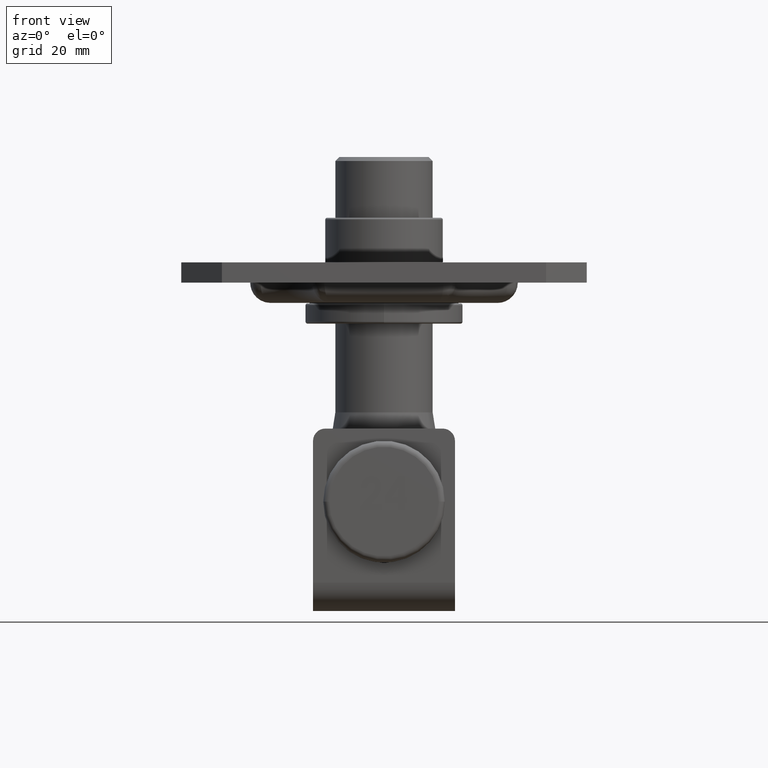
[diagram: clean part render]
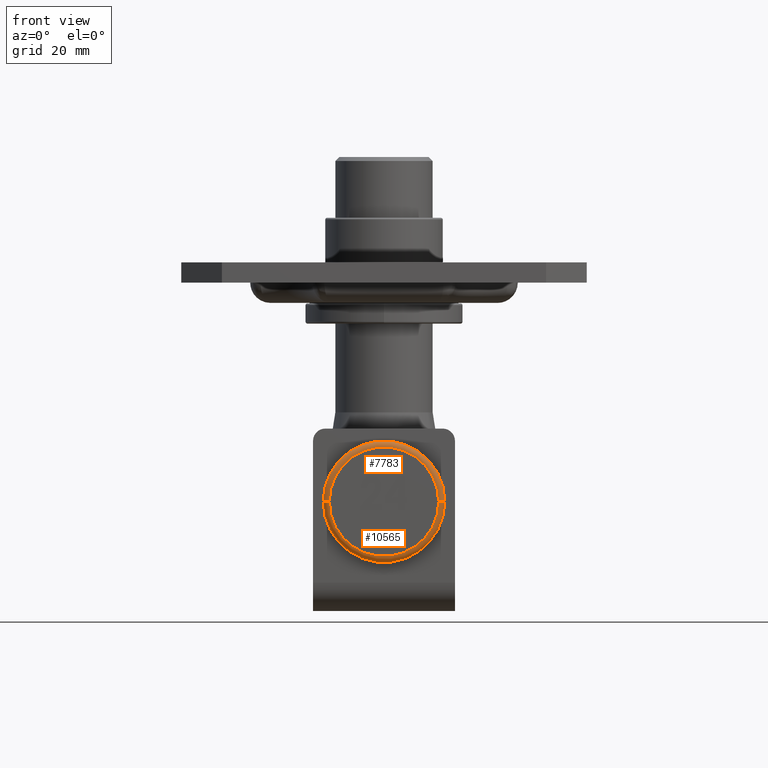
[diagram: same view with one multi-face feature highlighted, each face labeled with its STEP entity id]
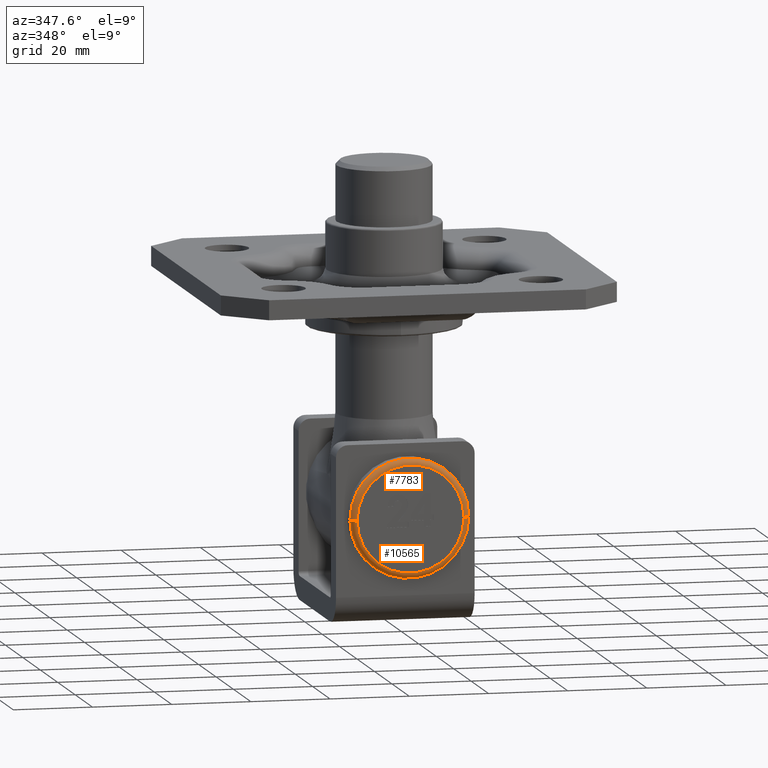
[diagram: same view with one multi-face feature highlighted, each face labeled with its STEP entity id]
A machine part, front view. The highlighted faces form ONE feature: a constant-radius fillet chain: 2 tangent blend faces with common blend radius 1.5 mm. The faces share edges in the B-rep.
A second angle (auxiliary view) of the same feature is appended — it is thin or edge-on in the first view.
Their STEP definitions:
[1] entity #7783 (Torus):
#440 = EDGE_CURVE ( 'NONE', #19672, #3018, #12700, .T. ) ;
#1141 = CARTESIAN_POINT ( 'NONE',  ( -4.814824860968089600E-032, 0.0000000000000000000, 0.0000000000000000000 ) ) ;
#1395 = CIRCLE ( 'NONE', #20718, 1.499999999999999600 ) ;
#1727 = AXIS2_PLACEMENT_3D ( 'NONE', #1141, #13238, #16556 ) ;
#3018 = VERTEX_POINT ( 'NONE', #13046 ) ;
#3191 = AXIS2_PLACEMENT_3D ( 'NONE', #17034, #6681, #18772 ) ;
#3784 = DIRECTION ( 'NONE',  ( -1.000000000000000000, -2.891205793294678700E-017, 0.0000000000000000000 ) ) ;
#5434 = VERTEX_POINT ( 'NONE', #17599 ) ;
#5731 = ORIENTED_EDGE ( 'NONE', *, *, #16435, .F. ) ;
#6066 = CARTESIAN_POINT ( 'NONE',  ( -13.50000000000000000, 1.500000000000000900, 0.0000000000000000000 ) ) ;
#6681 = DIRECTION ( 'NONE',  ( -1.224646799147353200E-016, -4.240326665896121400E-033, 1.000000000000000000 ) ) ;
#7024 = EDGE_CURVE ( 'NONE', #22154, #5434, #10729, .T. ) ;
#7783 = ADVANCED_FACE ( 'NONE', ( #15799 ), #9340, .T. ) ;
#7992 = CARTESIAN_POINT ( 'NONE',  ( -15.00000000000000000, 1.500000000000000900, 0.0000000000000000000 ) ) ;
#9283 = CIRCLE ( 'NONE', #3191, 1.499999999999999600 ) ;
#9340 = TOROIDAL_SURFACE ( 'NONE', #9649, 13.50000000000000000, 1.500000000000000000 ) ;
#9479 = EDGE_LOOP ( 'NONE', ( #9667, #12893, #16064, #5731 ) ) ;
#9649 = AXIS2_PLACEMENT_3D ( 'NONE', #10803, #10724, #10880 ) ;
#9667 = ORIENTED_EDGE ( 'NONE', *, *, #440, .F. ) ;
#10516 = CARTESIAN_POINT ( 'NONE',  ( -5.193734228736493100E-017, 1.500000000000001300, 0.0000000000000000000 ) ) ;
#10580 = DIRECTION ( 'NONE',  ( -3.462489485824322600E-017, 1.000000000000000000, -0.0000000000000000000 ) ) ;
#10724 = DIRECTION ( 'NONE',  ( -3.462489485824322600E-017, 1.000000000000000000, -0.0000000000000000000 ) ) ;
#10729 = CIRCLE ( 'NONE', #20122, 15.00000000000000000 ) ;
#10803 = CARTESIAN_POINT ( 'NONE',  ( -5.193734228736493100E-017, 1.500000000000001300, 0.0000000000000000000 ) ) ;
#10880 = DIRECTION ( 'NONE',  ( -1.000000000000000000, -3.462489485824322600E-017, 0.0000000000000000000 ) ) ;
#12700 = CIRCLE ( 'NONE', #1727, 13.50000000000000000 ) ;
#12893 = ORIENTED_EDGE ( 'NONE', *, *, #21433, .T. ) ;
#13046 = CARTESIAN_POINT ( 'NONE',  ( -13.50000000000000000, -4.674360805862835700E-016, 0.0000000000000000000 ) ) ;
#13238 = DIRECTION ( 'NONE',  ( 3.462489485824322600E-017, -1.000000000000000000, 0.0000000000000000000 ) ) ;
#13508 = CARTESIAN_POINT ( 'NONE',  ( 13.50000000000000000, 4.674360805862835700E-016, 1.745121688784978200E-015 ) ) ;
#15799 = FACE_OUTER_BOUND ( 'NONE', #9479, .T. ) ;
#16064 = ORIENTED_EDGE ( 'NONE', *, *, #7024, .F. ) ;
#16435 = EDGE_CURVE ( 'NONE', #3018, #22154, #1395, .T. ) ;
#16556 = DIRECTION ( 'NONE',  ( -1.000000000000000000, -3.462489485824322600E-017, 0.0000000000000000000 ) ) ;
#16576 = DIRECTION ( 'NONE',  ( 0.0000000000000000000, -0.0000000000000000000, -1.000000000000000000 ) ) ;
#17034 = CARTESIAN_POINT ( 'NONE',  ( 13.50000000000000000, 1.500000000000001800, 1.653273178848926900E-015 ) ) ;
#17599 = CARTESIAN_POINT ( 'NONE',  ( 15.00000000000000000, 1.500000000000001800, 1.836970198721029600E-015 ) ) ;
#18772 = DIRECTION ( 'NONE',  ( 1.000000000000000000, 0.0000000000000000000, 1.224646799147354700E-016 ) ) ;
#19672 = VERTEX_POINT ( 'NONE', #13508 ) ;
#19980 = DIRECTION ( 'NONE',  ( -1.000000000000000000, 0.0000000000000000000, 0.0000000000000000000 ) ) ;
#20122 = AXIS2_PLACEMENT_3D ( 'NONE', #10516, #10580, #3784 ) ;
#20718 = AXIS2_PLACEMENT_3D ( 'NONE', #6066, #16576, #19980 ) ;
#21433 = EDGE_CURVE ( 'NONE', #19672, #5434, #9283, .T. ) ;
#22154 = VERTEX_POINT ( 'NONE', #7992 ) ;
[2] entity #10565 (Torus):
#1363 = EDGE_CURVE ( 'NONE', #3018, #19672, #3622, .T. ) ;
#1395 = CIRCLE ( 'NONE', #20718, 1.499999999999999600 ) ;
#2137 = AXIS2_PLACEMENT_3D ( 'NONE', #14549, #11255, #16352 ) ;
#2626 = AXIS2_PLACEMENT_3D ( 'NONE', #21744, #18584, #14887 ) ;
#3018 = VERTEX_POINT ( 'NONE', #13046 ) ;
#3191 = AXIS2_PLACEMENT_3D ( 'NONE', #17034, #6681, #18772 ) ;
#3622 = CIRCLE ( 'NONE', #2626, 13.50000000000000000 ) ;
#3826 = ORIENTED_EDGE ( 'NONE', *, *, #14274, .F. ) ;
#5434 = VERTEX_POINT ( 'NONE', #17599 ) ;
#6066 = CARTESIAN_POINT ( 'NONE',  ( -13.50000000000000000, 1.500000000000000900, 0.0000000000000000000 ) ) ;
#6681 = DIRECTION ( 'NONE',  ( -1.224646799147353200E-016, -4.240326665896121400E-033, 1.000000000000000000 ) ) ;
#6717 = DIRECTION ( 'NONE',  ( -3.462489485824322600E-017, 1.000000000000000000, -0.0000000000000000000 ) ) ;
#7068 = AXIS2_PLACEMENT_3D ( 'NONE', #20414, #6717, #22060 ) ;
#7992 = CARTESIAN_POINT ( 'NONE',  ( -15.00000000000000000, 1.500000000000000900, 0.0000000000000000000 ) ) ;
#8680 = EDGE_LOOP ( 'NONE', ( #10415, #10121, #11403, #3826 ) ) ;
#9283 = CIRCLE ( 'NONE', #3191, 1.499999999999999600 ) ;
#10121 = ORIENTED_EDGE ( 'NONE', *, *, #1363, .F. ) ;
#10415 = ORIENTED_EDGE ( 'NONE', *, *, #21433, .F. ) ;
#10565 = ADVANCED_FACE ( 'NONE', ( #19064 ), #15581, .T. ) ;
#11255 = DIRECTION ( 'NONE',  ( -3.462489485824322600E-017, 1.000000000000000000, -0.0000000000000000000 ) ) ;
#11403 = ORIENTED_EDGE ( 'NONE', *, *, #16435, .T. ) ;
#12003 = CIRCLE ( 'NONE', #2137, 15.00000000000000000 ) ;
#13046 = CARTESIAN_POINT ( 'NONE',  ( -13.50000000000000000, -4.674360805862835700E-016, 0.0000000000000000000 ) ) ;
#13508 = CARTESIAN_POINT ( 'NONE',  ( 13.50000000000000000, 4.674360805862835700E-016, 1.745121688784978200E-015 ) ) ;
#14274 = EDGE_CURVE ( 'NONE', #5434, #22154, #12003, .T. ) ;
#14549 = CARTESIAN_POINT ( 'NONE',  ( -5.193734228736493100E-017, 1.500000000000001300, 0.0000000000000000000 ) ) ;
#14887 = DIRECTION ( 'NONE',  ( -1.000000000000000000, -3.462489485824322600E-017, 0.0000000000000000000 ) ) ;
#15581 = TOROIDAL_SURFACE ( 'NONE', #7068, 13.50000000000000000, 1.500000000000000000 ) ;
#16352 = DIRECTION ( 'NONE',  ( -1.000000000000000000, -2.891205793294678700E-017, 0.0000000000000000000 ) ) ;
#16435 = EDGE_CURVE ( 'NONE', #3018, #22154, #1395, .T. ) ;
#16576 = DIRECTION ( 'NONE',  ( 0.0000000000000000000, -0.0000000000000000000, -1.000000000000000000 ) ) ;
#17034 = CARTESIAN_POINT ( 'NONE',  ( 13.50000000000000000, 1.500000000000001800, 1.653273178848926900E-015 ) ) ;
#17599 = CARTESIAN_POINT ( 'NONE',  ( 15.00000000000000000, 1.500000000000001800, 1.836970198721029600E-015 ) ) ;
#18584 = DIRECTION ( 'NONE',  ( 3.462489485824322600E-017, -1.000000000000000000, 0.0000000000000000000 ) ) ;
#18772 = DIRECTION ( 'NONE',  ( 1.000000000000000000, 0.0000000000000000000, 1.224646799147354700E-016 ) ) ;
#19064 = FACE_OUTER_BOUND ( 'NONE', #8680, .T. ) ;
#19672 = VERTEX_POINT ( 'NONE', #13508 ) ;
#19980 = DIRECTION ( 'NONE',  ( -1.000000000000000000, 0.0000000000000000000, 0.0000000000000000000 ) ) ;
#20414 = CARTESIAN_POINT ( 'NONE',  ( -5.193734228736493100E-017, 1.500000000000001300, 0.0000000000000000000 ) ) ;
#20718 = AXIS2_PLACEMENT_3D ( 'NONE', #6066, #16576, #19980 ) ;
#21433 = EDGE_CURVE ( 'NONE', #19672, #5434, #9283, .T. ) ;
#21744 = CARTESIAN_POINT ( 'NONE',  ( -4.814824860968089600E-032, 0.0000000000000000000, 0.0000000000000000000 ) ) ;
#22060 = DIRECTION ( 'NONE',  ( -1.000000000000000000, -3.462489485824322600E-017, 0.0000000000000000000 ) ) ;
#22154 = VERTEX_POINT ( 'NONE', #7992 ) ;